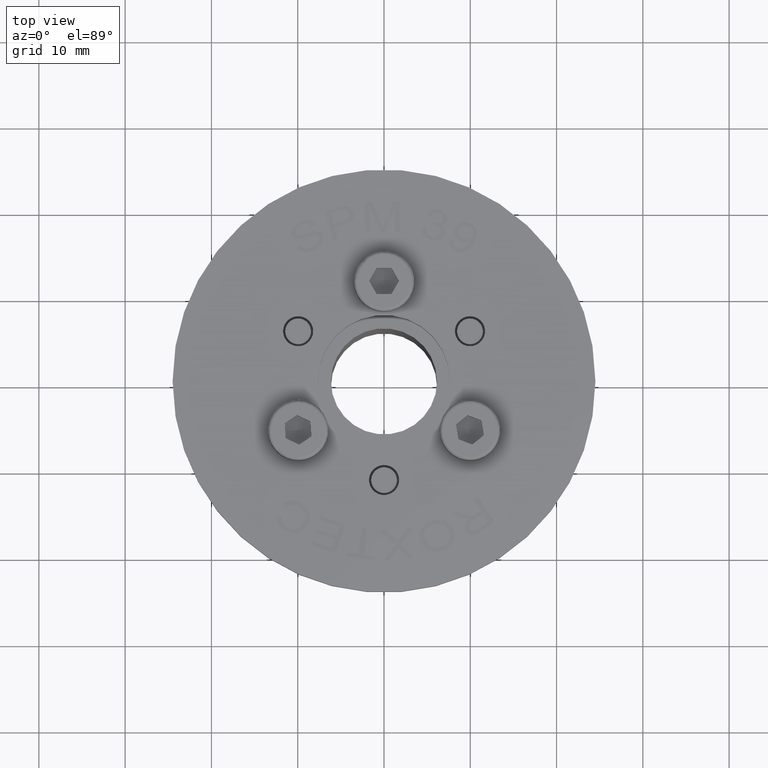
[diagram: clean part render]
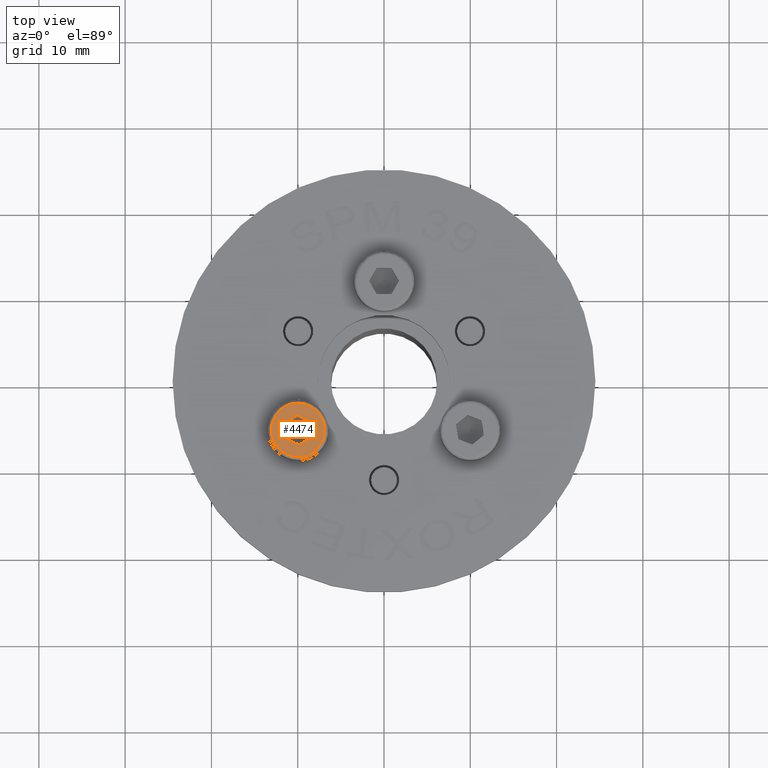
[diagram: same view with one face highlighted and labeled with its STEP entity id]
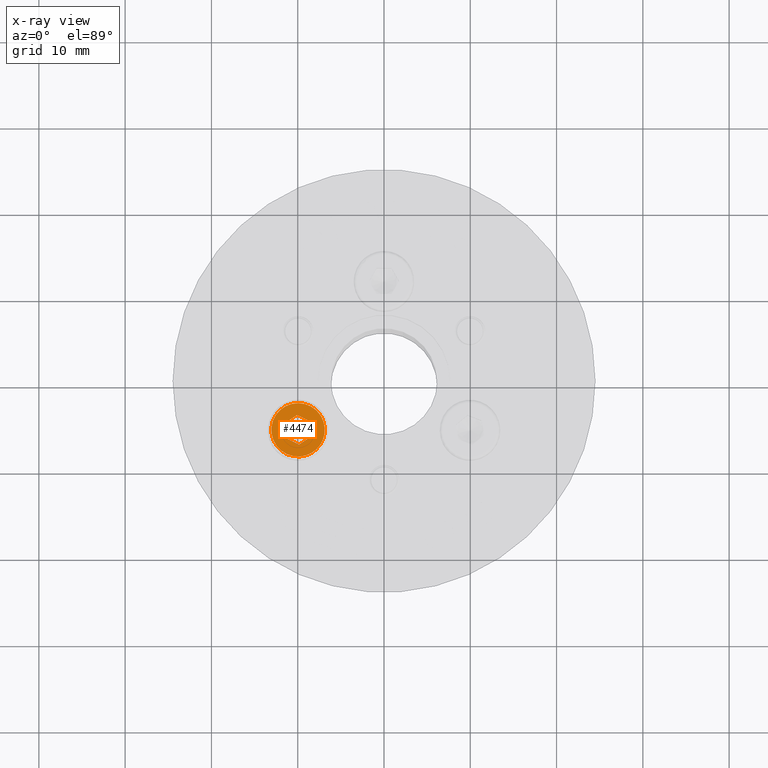
[diagram: x-ray of the same camera — body ghosted, the highlighted face saturated]
A machine part, top view. The second image highlights one B-rep face of the part: STEP entity #4474.
The next image is the same camera in x-ray: the body ghosted, the highlighted face saturated — about 0% of this face is hidden behind the body in this view.
In plain terms, the highlighted planar face has unit normal (-0, -0, 1).
Its self-contained STEP definition (entity closure, byte-faithful):
#373=FACE_BOUND('',#1700,.T.);
#474=PLANE('',#4892);
#813=LINE('',#8204,#1159);
#814=LINE('',#8206,#1160);
#815=LINE('',#8208,#1161);
#816=LINE('',#8210,#1162);
#817=LINE('',#8212,#1163);
#818=LINE('',#8213,#1164);
#1159=VECTOR('',#5836,10.);
#1160=VECTOR('',#5837,10.);
#1161=VECTOR('',#5838,10.);
#1162=VECTOR('',#5839,10.);
#1163=VECTOR('',#5840,10.);
#1164=VECTOR('',#5841,10.);
#1412=FACE_OUTER_BOUND('',#1699,.T.);
#1699=EDGE_LOOP('',(#4187,#4188));
#1700=EDGE_LOOP('',(#4189,#4190,#4191,#4192,#4193,#4194));
#1847=CIRCLE('',#4889,3.1);
#1848=CIRCLE('',#4890,3.1);
#2276=VERTEX_POINT('',#8195);
#2277=VERTEX_POINT('',#8197);
#2278=VERTEX_POINT('',#8202);
#2279=VERTEX_POINT('',#8203);
#2280=VERTEX_POINT('',#8205);
#2281=VERTEX_POINT('',#8207);
#2282=VERTEX_POINT('',#8209);
#2283=VERTEX_POINT('',#8211);
#2916=EDGE_CURVE('',#2276,#2277,#1847,.T.);
#2917=EDGE_CURVE('',#2277,#2276,#1848,.T.);
#2919=EDGE_CURVE('',#2278,#2279,#813,.T.);
#2920=EDGE_CURVE('',#2279,#2280,#814,.T.);
#2921=EDGE_CURVE('',#2280,#2281,#815,.T.);
#2922=EDGE_CURVE('',#2281,#2282,#816,.T.);
#2923=EDGE_CURVE('',#2282,#2283,#817,.T.);
#2924=EDGE_CURVE('',#2283,#2278,#818,.T.);
#4187=ORIENTED_EDGE('',*,*,#2917,.F.);
#4188=ORIENTED_EDGE('',*,*,#2916,.F.);
#4189=ORIENTED_EDGE('',*,*,#2919,.T.);
#4190=ORIENTED_EDGE('',*,*,#2920,.T.);
#4191=ORIENTED_EDGE('',*,*,#2921,.T.);
#4192=ORIENTED_EDGE('',*,*,#2922,.T.);
#4193=ORIENTED_EDGE('',*,*,#2923,.T.);
#4194=ORIENTED_EDGE('',*,*,#2924,.T.);
#4474=ADVANCED_FACE('',(#1412,#373),#474,.T.);
#4889=AXIS2_PLACEMENT_3D('',#8198,#5828,#5829);
#4890=AXIS2_PLACEMENT_3D('',#8199,#5830,#5831);
#4892=AXIS2_PLACEMENT_3D('',#8201,#5834,#5835);
#5828=DIRECTION('center_axis',(1.,2.93835360817607E-18,0.));
#5829=DIRECTION('ref_axis',(2.93835360817607E-18,-1.,1.22464679914735E-16));
#5830=DIRECTION('center_axis',(1.,2.93835360817607E-18,0.));
#5831=DIRECTION('ref_axis',(2.93835360817607E-18,-1.,1.22464679914735E-16));
#5834=DIRECTION('center_axis',(-1.,-2.93835360817607E-18,0.));
#5835=DIRECTION('ref_axis',(0.,0.,1.));
#5836=DIRECTION('',(-2.82517217396155E-33,9.61481343191783E-16,1.));
#5837=DIRECTION('',(2.54468886998214E-18,-0.866025403784438,0.500000000000001));
#5838=DIRECTION('',(2.54468886998214E-18,-0.866025403784439,-0.5));
#5839=DIRECTION('',(4.70862028993591E-34,-1.60246890531964E-16,-1.));
#5840=DIRECTION('',(-2.54468886998214E-18,0.866025403784438,-0.5));
#5841=DIRECTION('',(-2.54468886998214E-18,0.866025403784439,0.5));
#8195=CARTESIAN_POINT('',(-3.99999999999999,-5.08928066495427E-16,3.1));
#8197=CARTESIAN_POINT('',(-3.99999999999999,3.1,0.));
#8198=CARTESIAN_POINT('Origin',(-3.99999999999999,-1.29287558759747E-16,
0.));
#8199=CARTESIAN_POINT('Origin',(-3.99999999999999,-1.29287558759747E-16,
0.));
#8201=CARTESIAN_POINT('Origin',(-3.99999999999999,2.61602540378444,0.));
#8202=CARTESIAN_POINT('',(-3.99999999999999,1.5,-0.866025403784439));
#8203=CARTESIAN_POINT('',(-3.99999999999999,1.5,0.866025403784437));
#8204=CARTESIAN_POINT('',(-3.99999999999999,1.5,0.433012701892218));
#8205=CARTESIAN_POINT('',(-3.99999999999999,8.28274889852343E-17,1.73205080756888));
#8206=CARTESIAN_POINT('',(-3.99999999999999,0.375,1.51554445662277));
#8207=CARTESIAN_POINT('',(-3.99999999999999,-1.5,0.866025403784439));
#8208=CARTESIAN_POINT('',(-3.99999999999999,-1.125,1.08253175473055));
#8209=CARTESIAN_POINT('',(-3.99999999999999,-1.5,-0.866025403784438));
#8210=CARTESIAN_POINT('',(-3.99999999999999,-1.5,-0.433012701892219));
#8211=CARTESIAN_POINT('',(-3.99999999999999,-3.38174474100171E-16,-1.73205080756888));
#8212=CARTESIAN_POINT('',(-3.99999999999999,-0.375,-1.51554445662277));
#8213=CARTESIAN_POINT('',(-3.99999999999999,1.125,-1.08253175473055));